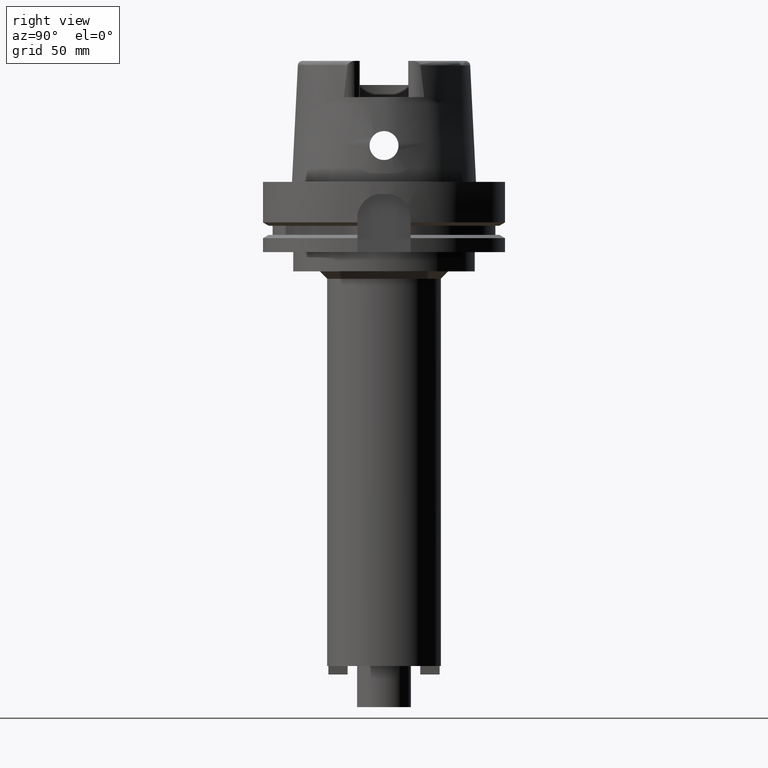
[diagram: clean part render]
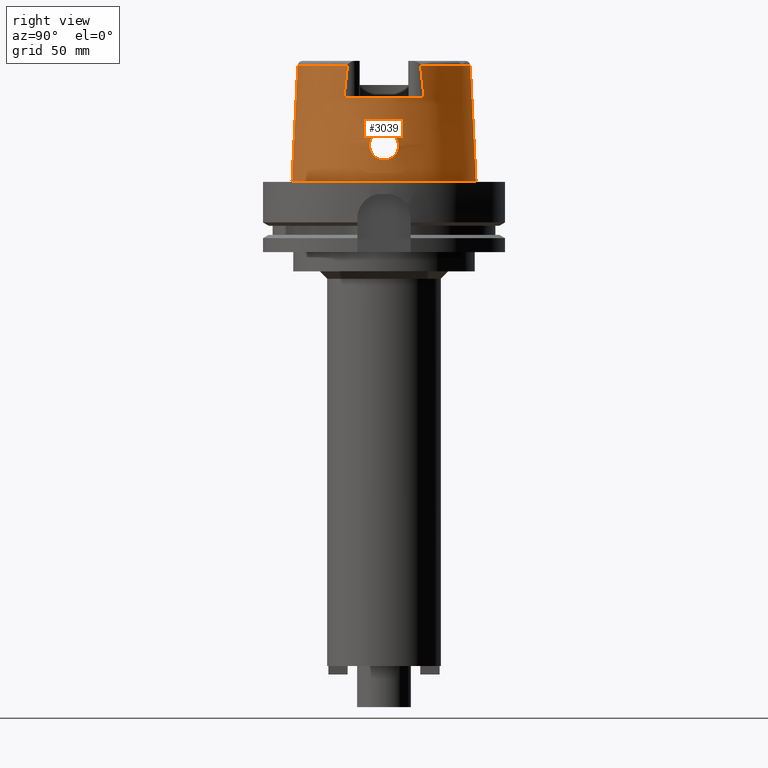
[diagram: same view with one face highlighted and labeled with its STEP entity id]
A machine part, right view. The second image highlights one B-rep face of the part: STEP entity #3039.
In plain terms, the highlighted conical surface has half-angle 2.862 deg.
Its self-contained STEP definition (entity closure, byte-faithful):
#266=CARTESIAN_POINT('',(3.225000552017E1,-1.506439835465E1,4.810004113516E1));
#271=CARTESIAN_POINT('',(0.E0,0.E0,4.809987853799E1));
#272=DIRECTION('',(0.E0,0.E0,-1.E0));
#273=DIRECTION('',(9.060280460805E-1,-4.232176505246E-1,0.E0));
#274=AXIS2_PLACEMENT_3D('',#271,#272,#273);
#297=DIRECTION('',(5.154182075151E-5,-4.993927430816E-2,-9.987522546783E-1));
#298=VECTOR('',#297,4.815996991514E1);
#299=CARTESIAN_POINT('',(-2.482252536761E-3,-3.559494263425E1,
4.809987853799E1));
#300=LINE('',#299,#298);
#352=CARTESIAN_POINT('',(3.224999527489E1,1.655287543599E1,3.5E1));
#353=CARTESIAN_POINT('',(3.224999527489E1,1.639226210430E1,3.646677430492E1));
#354=CARTESIAN_POINT('',(3.224999958003E1,1.606837256290E1,3.939292729904E1));
#355=CARTESIAN_POINT('',(3.225000855756E1,1.557203226627E1,4.375938292888E1));
#356=CARTESIAN_POINT('',(3.224998031234E1,1.523513277664E1,4.665592154409E1));
#357=CARTESIAN_POINT('',(3.224998031234E1,1.506460247509E1,4.809931785739E1));
#362=DIRECTION('',(-5.154182075159E-5,4.993927430816E-2,-9.987522546783E-1));
#363=VECTOR('',#362,4.815996991514E1);
#364=CARTESIAN_POINT('',(2.482252536765E-3,3.559494263425E1,4.809987853799E1));
#365=LINE('',#364,#363);
#369=CARTESIAN_POINT('',(3.225000552017E1,-1.506439835465E1,4.810004113516E1));
#370=CARTESIAN_POINT('',(3.225000552017E1,-1.523503285395E1,4.665577839628E1));
#371=CARTESIAN_POINT('',(3.225000026293E1,-1.557219474653E1,4.376011564063E1));
#372=CARTESIAN_POINT('',(3.224999079948E1,-1.606856473028E1,3.939344264727E1));
#373=CARTESIAN_POINT('',(3.225002129259E1,-1.639212166417E1,3.646699412941E1));
#374=CARTESIAN_POINT('',(3.225002129259E1,-1.655276054267E1,3.5E1));
#379=CARTESIAN_POINT('',(3.694998175923E1,-1.394597051989E-13,2.1E1));
#380=CARTESIAN_POINT('',(3.694998175923E1,-5.230126006809E-1,2.1E1));
#381=CARTESIAN_POINT('',(3.693413998899E1,-1.570201911722E0,2.086238810102E1));
#382=CARTESIAN_POINT('',(3.687094047415E1,-3.037110785428E0,2.025501138290E1));
#383=CARTESIAN_POINT('',(3.679109130875E1,-4.299142814436E0,1.928420430523E1));
#384=CARTESIAN_POINT('',(3.672645747065E1,-5.261736300941E0,1.802437967866E1));
#385=CARTESIAN_POINT('',(3.670710366243E1,-5.864133349624E0,1.656046419830E1));
#386=CARTESIAN_POINT('',(3.675214570618E1,-6.067589951765E0,1.500436050606E1));
#387=CARTESIAN_POINT('',(3.686482139884E1,-5.865500761999E0,1.344301875664E1));
#388=CARTESIAN_POINT('',(3.703191350768E1,-5.262600873946E0,1.197676797053E1));
#389=CARTESIAN_POINT('',(3.722288329245E1,-4.297377500930E0,1.071304670774E1));
#390=CARTESIAN_POINT('',(3.739934591474E1,-3.027363831213E0,9.738853618550E0));
#391=CARTESIAN_POINT('',(3.752127463480E1,-1.559611364212E0,9.135274888416E0));
#392=CARTESIAN_POINT('',(3.755000165825E1,-5.184961182117E-1,9.E0));
#393=CARTESIAN_POINT('',(3.755000165825E1,0.E0,9.E0));
#398=CARTESIAN_POINT('',(3.755000165825E1,0.E0,9.E0));
#399=CARTESIAN_POINT('',(3.755000165825E1,5.180755808846E-1,9.E0));
#400=CARTESIAN_POINT('',(3.752123976991E1,1.555457138677E0,9.135504589560E0));
#401=CARTESIAN_POINT('',(3.740151953140E1,3.004805221425E0,9.728024511980E0));
#402=CARTESIAN_POINT('',(3.722750411560E1,4.269442508566E0,1.068600386398E1));
#403=CARTESIAN_POINT('',(3.703612455344E1,5.245140589318E0,1.194462932490E1));
#404=CARTESIAN_POINT('',(3.686635136497E1,5.862211683304E0,1.342388085615E1));
#405=CARTESIAN_POINT('',(3.675195938897E1,6.068924227695E0,1.500356697727E1));
#406=CARTESIAN_POINT('',(3.670699644778E1,5.862090617247E0,1.656938676173E1));
#407=CARTESIAN_POINT('',(3.672673353473E1,5.257850400783E0,1.802962385487E1));
#408=CARTESIAN_POINT('',(3.679090914946E1,4.301585837678E0,1.928062095487E1));
#409=CARTESIAN_POINT('',(3.687053943677E1,3.044356714671E0,2.025092074974E1));
#410=CARTESIAN_POINT('',(3.693405051753E1,1.574510382272E0,2.086164770043E1));
#411=CARTESIAN_POINT('',(3.694998175923E1,5.247305156409E-1,2.1E1));
#412=CARTESIAN_POINT('',(3.694998175923E1,-1.394597051989E-13,2.1E1));
#447=CARTESIAN_POINT('',(0.E0,0.E0,3.5E1));
#448=DIRECTION('',(0.E0,0.E0,-1.E0));
#449=DIRECTION('',(8.896561898443E-1,4.566309931135E-1,0.E0));
#450=AXIS2_PLACEMENT_3D('',#447,#448,#449);
#2057=CARTESIAN_POINT('',(0.E0,0.E0,1.250555214938E-12));
#2058=DIRECTION('',(0.E0,0.E0,1.E0));
#2059=DIRECTION('',(0.E0,-1.E0,0.E0));
#2060=AXIS2_PLACEMENT_3D('',#2057,#2058,#2059);
#2407=CARTESIAN_POINT('',(0.E0,0.E0,4.809987853799E1));
#2408=DIRECTION('',(0.E0,0.E0,-1.E0));
#2409=DIRECTION('',(0.E0,1.E0,0.E0));
#2410=AXIS2_PLACEMENT_3D('',#2407,#2408,#2409);
#2492=CARTESIAN_POINT('',(0.E0,3.559494289391E1,4.809987853799E1));
#2493=VERTEX_POINT('',#2492);
#2494=CARTESIAN_POINT('',(3.224994093704E1,1.506456999646E1,4.809987853799E1));
#2495=VERTEX_POINT('',#2494);
#2499=VERTEX_POINT('',#266);
#2500=CARTESIAN_POINT('',(1.065814103640E-14,-3.559494289391E1,
4.809987853799E1));
#2501=VERTEX_POINT('',#2500);
#2502=CARTESIAN_POINT('',(0.E0,-3.800001658252E1,8.313350008393E-13));
#2503=VERTEX_POINT('',#2502);
#2504=CARTESIAN_POINT('',(0.E0,3.800001658252E1,1.250555214938E-12));
#2505=VERTEX_POINT('',#2504);
#2508=CARTESIAN_POINT('',(3.225E1,1.655285457013E1,3.5E1));
#2509=CARTESIAN_POINT('',(3.225E1,-1.655285457013E1,3.5E1));
#2510=VERTEX_POINT('',#2508);
#2511=VERTEX_POINT('',#2509);
#2512=VERTEX_POINT('',#379);
#2513=VERTEX_POINT('',#393);
#3013=CARTESIAN_POINT('',(0.E0,0.E0,2.404993926900E1));
#3014=DIRECTION('',(0.E0,0.E0,-1.E0));
#3015=DIRECTION('',(0.E0,-1.E0,0.E0));
#3016=AXIS2_PLACEMENT_3D('',#3013,#3014,#3015);
#3017=CONICAL_SURFACE('',#3016,3.679747973821E1,2.8625E0);
#3019=ORIENTED_EDGE('',*,*,#3018,.F.);
#3021=ORIENTED_EDGE('',*,*,#3020,.T.);
#3023=ORIENTED_EDGE('',*,*,#3022,.F.);
#3024=ORIENTED_EDGE('',*,*,#2998,.T.);
#3026=ORIENTED_EDGE('',*,*,#3025,.F.);
#3027=ORIENTED_EDGE('',*,*,#2994,.F.);
#3028=ORIENTED_EDGE('',*,*,#2966,.F.);
#3030=ORIENTED_EDGE('',*,*,#3029,.T.);
#3031=EDGE_LOOP('',(#3019,#3021,#3023,#3024,#3026,#3027,#3028,#3030));
#3032=FACE_OUTER_BOUND('',#3031,.F.);
#3034=ORIENTED_EDGE('',*,*,#3033,.T.);
#3036=ORIENTED_EDGE('',*,*,#3035,.T.);
#3037=EDGE_LOOP('',(#3034,#3036));
#3038=FACE_BOUND('',#3037,.F.);
#275=CIRCLE('',#274,3.559494289391E1);
#358=B_SPLINE_CURVE_WITH_KNOTS('',3,(#352,#353,#354,#355,#356,#357),
.UNSPECIFIED.,.F.,.F.,(4,1,1,4),(0.E0,3.333333333333E-1,6.666666666667E-1,1.E0),
.UNSPECIFIED.);
#375=B_SPLINE_CURVE_WITH_KNOTS('',3,(#369,#370,#371,#372,#373,#374),
.UNSPECIFIED.,.F.,.F.,(4,1,1,4),(0.E0,3.333333333333E-1,6.666666666667E-1,1.E0),
.UNSPECIFIED.);
#394=B_SPLINE_CURVE_WITH_KNOTS('',3,(#379,#380,#381,#382,#383,#384,#385,#386,
#387,#388,#389,#390,#391,#392,#393),.UNSPECIFIED.,.F.,.F.,(4,1,1,1,1,1,1,1,1,1,
1,1,4),(0.E0,8.333333333333E-2,1.666666666667E-1,2.5E-1,3.333333333333E-1,
4.166666666667E-1,5.E-1,5.833333333333E-1,6.666666666667E-1,7.5E-1,
8.333333333333E-1,9.166666666667E-1,1.E0),.UNSPECIFIED.);
#413=B_SPLINE_CURVE_WITH_KNOTS('',3,(#398,#399,#400,#401,#402,#403,#404,#405,
#406,#407,#408,#409,#410,#411,#412),.UNSPECIFIED.,.F.,.F.,(4,1,1,1,1,1,1,1,1,1,
1,1,4),(0.E0,8.333333333333E-2,1.666666666667E-1,2.5E-1,3.333333333333E-1,
4.166666666667E-1,5.E-1,5.833333333333E-1,6.666666666667E-1,7.5E-1,
8.333333333333E-1,9.166666666667E-1,1.E0),.UNSPECIFIED.);
#451=CIRCLE('',#450,3.624995854370E1);
#2061=CIRCLE('',#2060,3.800001658252E1);
#2411=CIRCLE('',#2410,3.559494289391E1);
#2966=EDGE_CURVE('',#2499,#2501,#275,.T.);
#2994=EDGE_CURVE('',#2501,#2503,#300,.T.);
#2998=EDGE_CURVE('',#2493,#2505,#365,.T.);
#3018=EDGE_CURVE('',#2510,#2511,#451,.T.);
#3020=EDGE_CURVE('',#2510,#2495,#358,.T.);
#3022=EDGE_CURVE('',#2493,#2495,#2411,.T.);
#3025=EDGE_CURVE('',#2503,#2505,#2061,.T.);
#3029=EDGE_CURVE('',#2499,#2511,#375,.T.);
#3033=EDGE_CURVE('',#2512,#2513,#394,.T.);
#3035=EDGE_CURVE('',#2513,#2512,#413,.T.);
#3039=ADVANCED_FACE('',(#3032,#3038),#3017,.T.);